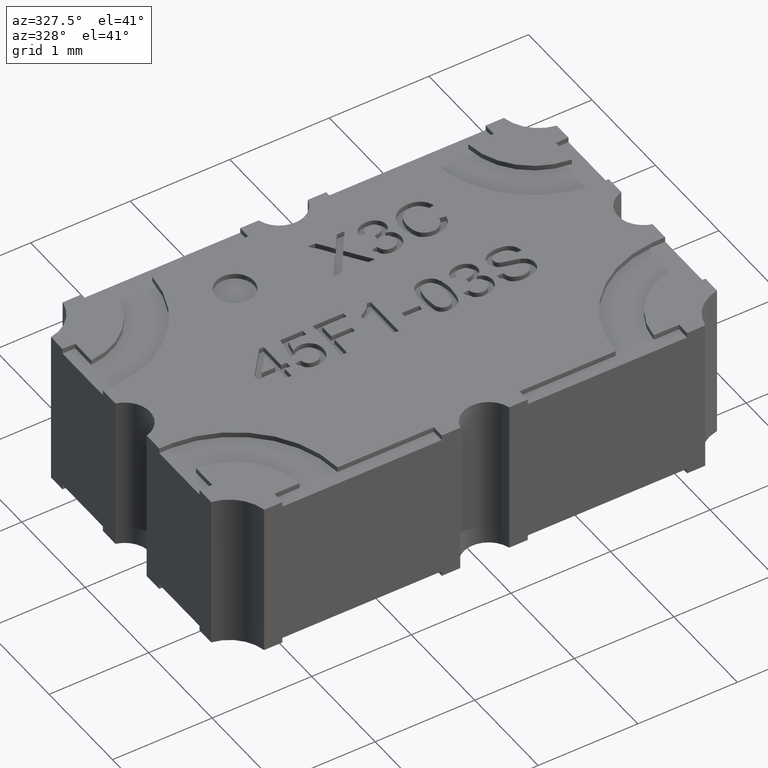
[diagram: clean part render]
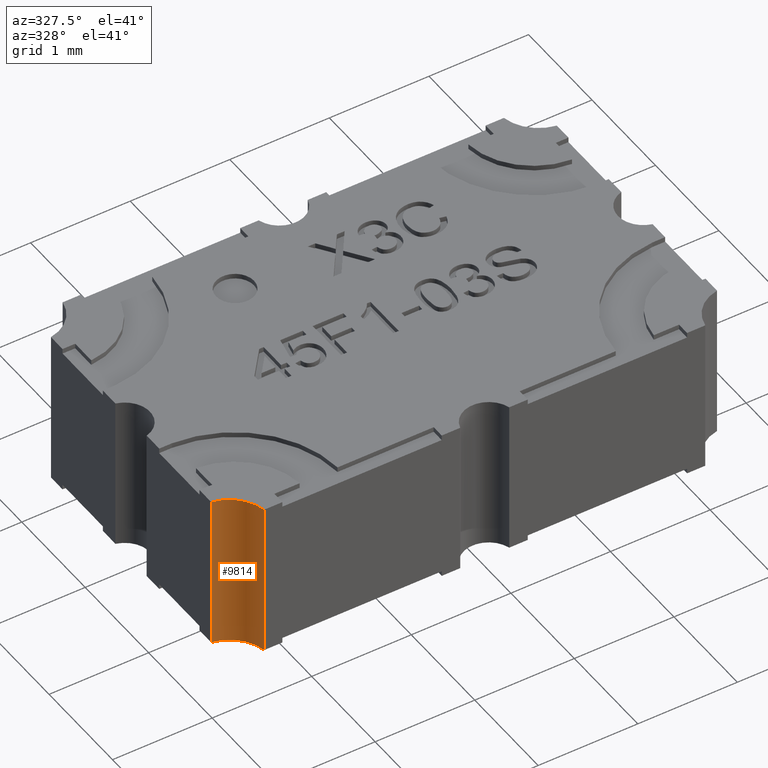
[diagram: same view with one face highlighted and labeled with its STEP entity id]
A machine part, auxiliary view. The second image highlights one B-rep face of the part: STEP entity #9814.
In plain terms, the highlighted cylindrical surface (partial cylindrical patch) has radius 0.3937 mm, axis along (-0, -0, -1).
Its self-contained STEP definition (entity closure, byte-faithful):
#385 = EDGE_CURVE ( 'NONE', #9393, #9481, #10577, .T. ) ;
#758 = CARTESIAN_POINT ( 'NONE',  ( -0.09999999999999174827, -0.04970294145924519097, 0.06199999999999999262 ) ) ;
#864 = EDGE_CURVE ( 'NONE', #1591, #9393, #9443, .T. ) ;
#1591 = VERTEX_POINT ( 'NONE', #9245 ) ;
#2520 = DIRECTION ( 'NONE',  ( -1.000000000000000000, 0.000000000000000000, 0.000000000000000000 ) ) ;
#2527 = AXIS2_PLACEMENT_3D ( 'NONE', #11395, #8381, #2520 ) ;
#2688 = VECTOR ( 'NONE', #5941, 39.37007874015748143 ) ;
#2751 = EDGE_LOOP ( 'NONE', ( #9685, #5879, #12429, #6629 ) ) ;
#3810 = DIRECTION ( 'NONE',  ( 0.000000000000000000, 0.000000000000000000, 1.000000000000000000 ) ) ;
#4411 = CARTESIAN_POINT ( 'NONE',  ( -0.08720294145923923601, -0.06249999999999773098, 0.000000000000000000 ) ) ;
#4472 = CARTESIAN_POINT ( 'NONE',  ( -0.1024999999999917921, -0.06499999999999771239, 0.000000000000000000 ) ) ;
#4729 = CARTESIAN_POINT ( 'NONE',  ( -0.09999999999999176215, -0.04970294145924517709, 0.002000000000000000042 ) ) ;
#4742 = VECTOR ( 'NONE', #9962, 39.37007874015748143 ) ;
#5845 = EDGE_CURVE ( 'NONE', #1591, #11926, #6042, .T. ) ;
#5879 = ORIENTED_EDGE ( 'NONE', *, *, #5845, .F. ) ;
#5941 = DIRECTION ( 'NONE',  ( -0.000000000000000000, -0.000000000000000000, -1.000000000000000000 ) ) ;
#6042 = LINE ( 'NONE', #9598, #4742 ) ;
#6362 = EDGE_CURVE ( 'NONE', #9481, #11926, #9068, .T. ) ;
#6446 = FACE_OUTER_BOUND ( 'NONE', #2751, .T. ) ;
#6629 = ORIENTED_EDGE ( 'NONE', *, *, #385, .T. ) ;
#6659 = DIRECTION ( 'NONE',  ( 1.000000000000000000, 0.000000000000000000, 0.000000000000000000 ) ) ;
#7831 = AXIS2_PLACEMENT_3D ( 'NONE', #4472, #8398, #6659 ) ;
#7955 = CARTESIAN_POINT ( 'NONE',  ( -0.09999999999999176215, -0.04970294145924517709, 0.000000000000000000 ) ) ;
#8381 = DIRECTION ( 'NONE',  ( -0.000000000000000000, -0.000000000000000000, -1.000000000000000000 ) ) ;
#8398 = DIRECTION ( 'NONE',  ( -0.000000000000000000, -0.000000000000000000, -1.000000000000000000 ) ) ;
#8512 = CYLINDRICAL_SURFACE ( 'NONE', #2527, 0.01549999999997452027 ) ;
#8764 = DIRECTION ( 'NONE',  ( 1.000000000000000000, 0.000000000000000000, 0.000000000000000000 ) ) ;
#9068 = CIRCLE ( 'NONE', #7831, 0.01549999999997452027 ) ;
#9245 = CARTESIAN_POINT ( 'NONE',  ( -0.08720294145923923601, -0.06249999999999773098, 0.06199999999999999262 ) ) ;
#9393 = VERTEX_POINT ( 'NONE', #758 ) ;
#9443 = CIRCLE ( 'NONE', #11085, 0.01549999999997452027 ) ;
#9481 = VERTEX_POINT ( 'NONE', #7955 ) ;
#9598 = CARTESIAN_POINT ( 'NONE',  ( -0.08720294145923923601, -0.06249999999999773098, 0.002000000000000000042 ) ) ;
#9685 = ORIENTED_EDGE ( 'NONE', *, *, #6362, .T. ) ;
#9814 = ADVANCED_FACE ( 'NONE', ( #6446 ), #8512, .F. ) ;
#9962 = DIRECTION ( 'NONE',  ( -0.000000000000000000, -0.000000000000000000, -1.000000000000000000 ) ) ;
#10577 = LINE ( 'NONE', #4729, #2688 ) ;
#11085 = AXIS2_PLACEMENT_3D ( 'NONE', #12491, #3810, #8764 ) ;
#11395 = CARTESIAN_POINT ( 'NONE',  ( -0.1024999999999917921, -0.06499999999999771239, 0.002000000000000000042 ) ) ;
#11926 = VERTEX_POINT ( 'NONE', #4411 ) ;
#12429 = ORIENTED_EDGE ( 'NONE', *, *, #864, .T. ) ;
#12491 = CARTESIAN_POINT ( 'NONE',  ( -0.1024999999999917921, -0.06499999999999771239, 0.06199999999999999262 ) ) ;